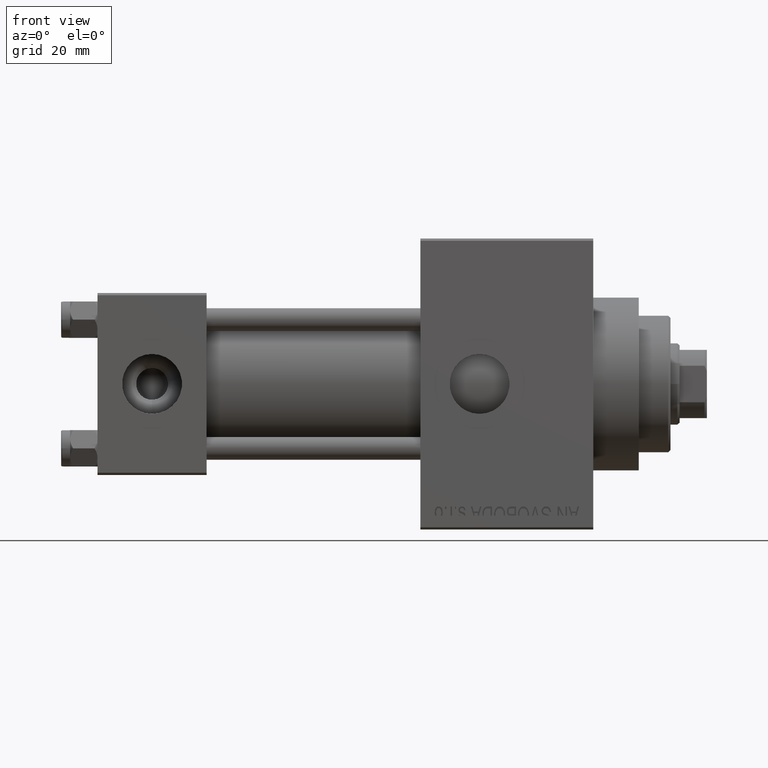
[diagram: clean part render]
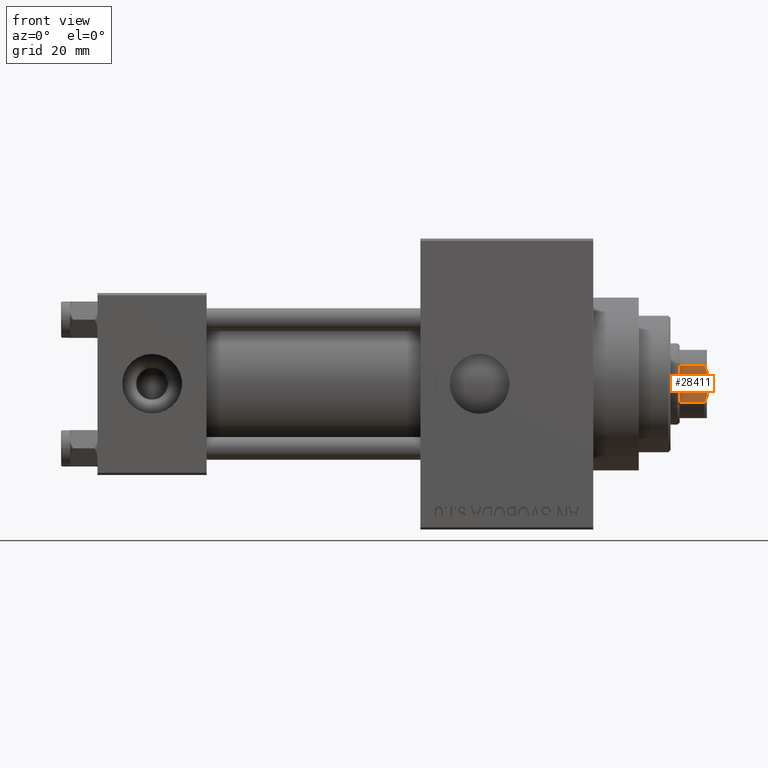
[diagram: same view with one face highlighted and labeled with its STEP entity id]
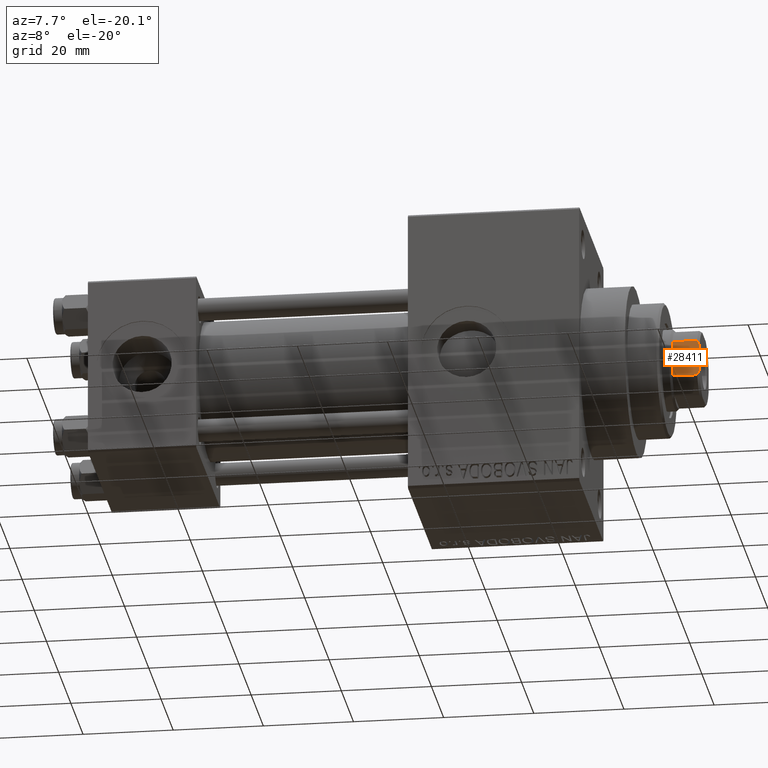
[diagram: same view with one face highlighted and labeled with its STEP entity id]
A machine part, front view. The second image highlights one B-rep face of the part: STEP entity #28411.
A second angle (auxiliary view) of the same face is appended — the face is thin or edge-on in the first view.
In plain terms, the highlighted planar face has unit normal (0, 1, 0).
Its self-contained STEP definition (entity closure, byte-faithful):
#240 = VERTEX_POINT ( 'NONE', #7958 ) ;
#344 = VERTEX_POINT ( 'NONE', #24132 ) ;
#684 = CARTESIAN_POINT ( 'NONE',  ( 7.500000000000000000, 4.000000000000001776, -0.001000000000001000089 ) ) ;
#1855 = CARTESIAN_POINT ( 'NONE',  ( 7.500000000000000000, -4.000000000000002665, -0.001000000000001000089 ) ) ;
#2949 = EDGE_CURVE ( 'NONE', #46283, #10041, #44872, .T. ) ;
#3265 = VECTOR ( 'NONE', #41096, 1000.000000000000000 ) ;
#3282 = ORIENTED_EDGE ( 'NONE', *, *, #36102, .F. ) ;
#3813 = VECTOR ( 'NONE', #45112, 1000.000000000000000 ) ;
#4354 = CARTESIAN_POINT ( 'NONE',  ( 7.500000000000000000, 7.500000000000000000, 110.0000000000000000 ) ) ;
#4948 = ORIENTED_EDGE ( 'NONE', *, *, #9240, .T. ) ;
#5367 = CARTESIAN_POINT ( 'NONE',  ( 7.500000000000000000, 7.500000000000000000, 104.0000000000000000 ) ) ;
#5627 = CARTESIAN_POINT ( 'NONE',  ( 7.500000000000001776, -3.602928590769614914, 109.6868571337553675 ) ) ;
#6031 = B_SPLINE_CURVE_WITH_KNOTS ( 'NONE', 3,
 ( #30587, #41972, #45082, #34387 ),
 .UNSPECIFIED., .F., .F.,
 ( 4, 4 ),
 ( 9.540979117872439019E-18, 0.001314892599675281451 ),
 .UNSPECIFIED. ) ;
#7438 = DIRECTION ( 'NONE',  ( -1.156482317317871478E-16, 1.000000000000000000, -0.000000000000000000 ) ) ;
#7914 = LINE ( 'NONE', #4354, #11566 ) ;
#7958 = CARTESIAN_POINT ( 'NONE',  ( 7.500000000000000888, -2.783882181414683465, 110.0000000000000000 ) ) ;
#9240 = EDGE_CURVE ( 'NONE', #10041, #344, #22577, .T. ) ;
#9606 = VERTEX_POINT ( 'NONE', #45096 ) ;
#9945 = B_SPLINE_CURVE_WITH_KNOTS ( 'NONE', 3,
 ( #12778, #38216, #5627, #31095 ),
 .UNSPECIFIED., .F., .F.,
 ( 4, 4 ),
 ( 4.336808689942017736E-19, 0.001314892599675292944 ),
 .UNSPECIFIED. ) ;
#10041 = VERTEX_POINT ( 'NONE', #43051 ) ;
#11254 = ORIENTED_EDGE ( 'NONE', *, *, #37642, .F. ) ;
#11566 = VECTOR ( 'NONE', #7438, 1000.000000000000000 ) ;
#12778 = CARTESIAN_POINT ( 'NONE',  ( 7.500000000000000888, -2.783882181414683465, 110.0000000000000000 ) ) ;
#14431 = VERTEX_POINT ( 'NONE', #36203 ) ;
#14840 = CARTESIAN_POINT ( 'NONE',  ( 7.500000000000000000, 7.500000000000000000, 110.0000000000000000 ) ) ;
#15339 = EDGE_LOOP ( 'NONE', ( #4948, #43941, #3282, #28041, #11254, #25371 ) ) ;
#16371 = DIRECTION ( 'NONE',  ( -0.000000000000000000, -0.000000000000000000, 1.000000000000000000 ) ) ;
#17087 = EDGE_CURVE ( 'NONE', #344, #14431, #6031, .T. ) ;
#18415 = PLANE ( 'NONE',  #42561 ) ;
#22577 = LINE ( 'NONE', #684, #3265 ) ;
#24132 = CARTESIAN_POINT ( 'NONE',  ( 7.500000000000000000, 4.000000000000001776, 109.4999999999998579 ) ) ;
#24843 = DIRECTION ( 'NONE',  ( -1.000000000000000000, -1.156482317317871478E-16, 0.000000000000000000 ) ) ;
#24933 = EDGE_CURVE ( 'NONE', #240, #9606, #9945, .T. ) ;
#25371 = ORIENTED_EDGE ( 'NONE', *, *, #2949, .T. ) ;
#25776 = FACE_OUTER_BOUND ( 'NONE', #15339, .T. ) ;
#28041 = ORIENTED_EDGE ( 'NONE', *, *, #24933, .T. ) ;
#28411 = ADVANCED_FACE ( 'NONE', ( #25776 ), #18415, .F. ) ;
#30587 = CARTESIAN_POINT ( 'NONE',  ( 7.500000000000000000, 4.000000000000001776, 109.4999999999998579 ) ) ;
#31095 = CARTESIAN_POINT ( 'NONE',  ( 7.500000000000000000, -4.000000000000002665, 109.4999999999998579 ) ) ;
#34387 = CARTESIAN_POINT ( 'NONE',  ( 7.500000000000000888, 2.783882181414685686, 110.0000000000000000 ) ) ;
#36102 = EDGE_CURVE ( 'NONE', #240, #14431, #7914, .T. ) ;
#36203 = CARTESIAN_POINT ( 'NONE',  ( 7.500000000000000888, 2.783882181414685686, 110.0000000000000000 ) ) ;
#37642 = EDGE_CURVE ( 'NONE', #46283, #9606, #37987, .T. ) ;
#37987 = LINE ( 'NONE', #1855, #41232 ) ;
#38216 = CARTESIAN_POINT ( 'NONE',  ( 7.500000000000000888, -3.198463757182497869, 109.8557317173096379 ) ) ;
#40260 = DIRECTION ( 'NONE',  ( 1.156482317317871478E-16, -1.000000000000000000, 0.000000000000000000 ) ) ;
#40830 = CARTESIAN_POINT ( 'NONE',  ( 7.500000000000000000, -4.000000000000002665, 104.0000000000000000 ) ) ;
#41096 = DIRECTION ( 'NONE',  ( -0.000000000000000000, -0.000000000000000000, 1.000000000000000000 ) ) ;
#41232 = VECTOR ( 'NONE', #16371, 1000.000000000000000 ) ;
#41972 = CARTESIAN_POINT ( 'NONE',  ( 7.500000000000000000, 3.602928590769622907, 109.6868571337553675 ) ) ;
#42561 = AXIS2_PLACEMENT_3D ( 'NONE', #14840, #24843, #40260 ) ;
#43051 = CARTESIAN_POINT ( 'NONE',  ( 7.500000000000000000, 4.000000000000001776, 103.9999999999999716 ) ) ;
#43941 = ORIENTED_EDGE ( 'NONE', *, *, #17087, .T. ) ;
#44872 = LINE ( 'NONE', #5367, #3813 ) ;
#45082 = CARTESIAN_POINT ( 'NONE',  ( 7.500000000000000888, 3.198463757182493428, 109.8557317173096379 ) ) ;
#45096 = CARTESIAN_POINT ( 'NONE',  ( 7.500000000000000000, -4.000000000000002665, 109.4999999999998579 ) ) ;
#45112 = DIRECTION ( 'NONE',  ( -1.156482317317871478E-16, 1.000000000000000000, -0.000000000000000000 ) ) ;
#46283 = VERTEX_POINT ( 'NONE', #40830 ) ;